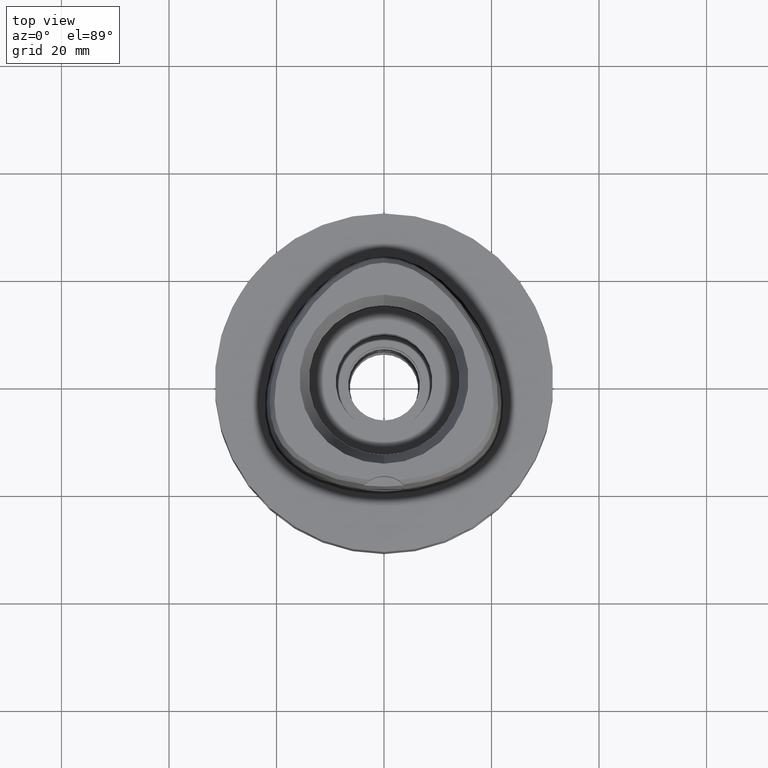
[diagram: clean part render]
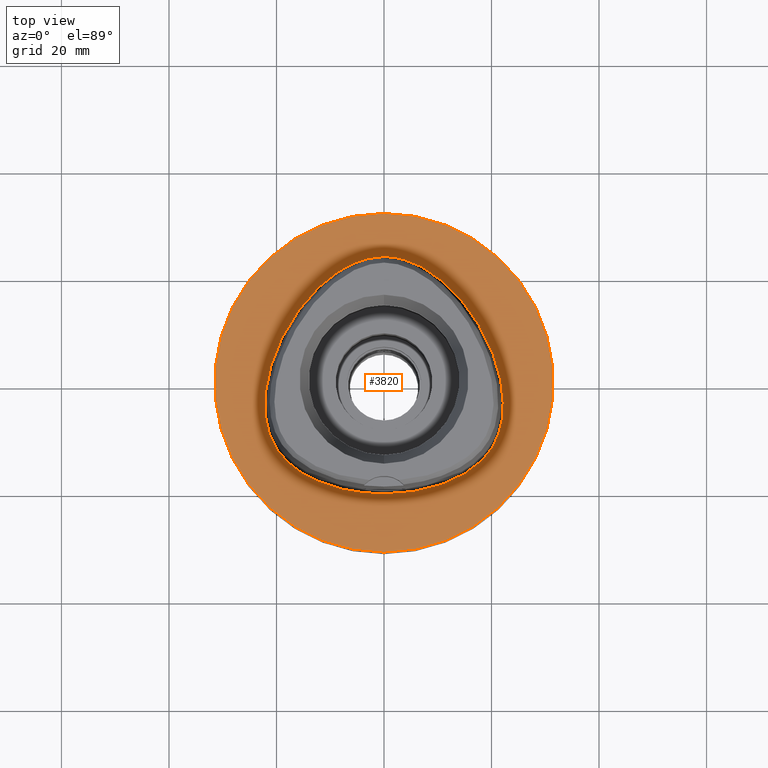
[diagram: same view with one face highlighted and labeled with its STEP entity id]
A machine part, top view. The second image highlights one B-rep face of the part: STEP entity #3820.
In plain terms, the highlighted planar face has unit normal (0, 0, -1).
Its self-contained STEP definition (entity closure, byte-faithful):
#47 = DIRECTION ( 'NONE',  ( 0.0000000000000000000, 0.0000000000000000000, -1.000000000000000000 ) ) ;
#123 = CARTESIAN_POINT ( 'NONE',  ( 18.56841065782704092, -14.16937988888225952, -3.519438220402678480E-07 ) ) ;
#136 = CARTESIAN_POINT ( 'NONE',  ( 0.0000000000000000000, 1.260345253342000041E-14, 0.0000000000000000000 ) ) ;
#161 = CARTESIAN_POINT ( 'NONE',  ( 20.93173253017243240, -10.60431640983400392, -3.519438220402678480E-07 ) ) ;
#225 = EDGE_CURVE ( 'NONE', #897, #1116, #770, .T. ) ;
#316 = CARTESIAN_POINT ( 'NONE',  ( -18.06826688405839221, 10.43171874929906373, 5.578078756817046735E-08 ) ) ;
#425 = CARTESIAN_POINT ( 'NONE',  ( 0.0000000000000000000, 1.260345253342000041E-14, 0.0000000000000000000 ) ) ;
#464 = CARTESIAN_POINT ( 'NONE',  ( 20.74942741711928562, 4.657187503000058015, -3.519438220402678480E-07 ) ) ;
#492 = CARTESIAN_POINT ( 'NONE',  ( 16.95889173139985573, -15.67838867882126408, -3.519438220402678480E-07 ) ) ;
#530 = CARTESIAN_POINT ( 'NONE',  ( 21.55524826855592124, -8.996025393140344661, -3.519438220402678480E-07 ) ) ;
#561 = EDGE_CURVE ( 'NONE', #3379, #1033, #1163, .T. ) ;
#630 = CARTESIAN_POINT ( 'NONE',  ( -14.67337964350561208, -17.21410156128839120, 5.578078756817046735E-08 ) ) ;
#656 = PLANE ( 'NONE',  #1421 ) ;
#677 = FACE_BOUND ( 'NONE', #1548, .T. ) ;
#770 = CIRCLE ( 'NONE', #1636, 31.50000000000000000 ) ;
#831 = CARTESIAN_POINT ( 'NONE',  ( 22.05732875196926202, -6.847636720006784472, -3.519438220402678480E-07 ) ) ;
#882 = CARTESIAN_POINT ( 'NONE',  ( 2.113823673588550722, -20.67500000879218547, -3.519438220402678480E-07 ) ) ;
#897 = VERTEX_POINT ( 'NONE', #2217 ) ;
#901 = DIRECTION ( 'NONE',  ( 0.0000000000000000000, 0.0000000000000000000, -1.000000000000000000 ) ) ;
#1003 = DIRECTION ( 'NONE',  ( 0.0000000000000000000, 0.0000000000000000000, -1.000000000000000000 ) ) ;
#1028 = CARTESIAN_POINT ( 'NONE',  ( -20.74942740748031866, 4.657187499524839680, 5.578078756817046735E-08 ) ) ;
#1033 = VERTEX_POINT ( 'NONE', #4502 ) ;
#1055 = CARTESIAN_POINT ( 'NONE',  ( -20.34961798436241054, -11.74885742116761378, 5.578078756817046735E-08 ) ) ;
#1098 = CARTESIAN_POINT ( 'NONE',  ( -22.05732874183049219, -6.847636718550103474, 5.578078756817046735E-08 ) ) ;
#1116 = VERTEX_POINT ( 'NONE', #3610 ) ;
#1163 = B_SPLINE_CURVE_WITH_KNOTS ( 'NONE', 3,
 ( #3090, #882, #1224, #2677, #3797, #492, #123, #2345, #1967, #161, #530, #831, #3382, #1559, #464, #3015, #4582, #3827, #2363, #4171, #1657, #1616, #4515 ),
 .UNSPECIFIED., .F., .F.,
 ( 4, 1, 1, 1, 1, 1, 1, 1, 1, 1, 1, 1, 1, 1, 1, 1, 1, 1, 1, 1, 4 ),
 ( 0.0000000000000000000, 0.08333333333348000305, 0.1666666666668000230, 0.2083333333334000115, 0.2500000000000999756, 0.2916666666666999919, 0.3125000000000000000, 0.3333333333333000081, 0.3541666666666999919, 0.3750000000000000000, 0.4166666666666999919, 0.4583333333332000326, 0.4999999999998999689, 0.5833333333332000326, 0.6666666666664999852, 0.7499999999998000488, 0.8333333333329999704, 0.8749999999997000177, 0.9166666666664000651, 0.9583333333329999704, 1.000000000000000000 ),
 .UNSPECIFIED. ) ;
#1224 = CARTESIAN_POINT ( 'NONE',  ( 6.341471020775136580, -20.29812500871732084, -3.519438220402679009E-07 ) ) ;
#1259 = ORIENTED_EDGE ( 'NONE', *, *, #4202, .F. ) ;
#1368 = CARTESIAN_POINT ( 'NONE',  ( -7.571159433644832681, 21.31457031129234991, 5.578078756817046735E-08 ) ) ;
#1411 = CARTESIAN_POINT ( 'NONE',  ( -5.098437016762670027, 22.52602538933180654, 5.578078756817046735E-08 ) ) ;
#1421 = AXIS2_PLACEMENT_3D ( 'NONE', #2914, #1003, #3676 ) ;
#1540 = DIRECTION ( 'NONE',  ( 0.0000000000000000000, -1.000000000000000000, 0.0000000000000000000 ) ) ;
#1548 = EDGE_LOOP ( 'NONE', ( #3148, #4678 ) ) ;
#1559 = CARTESIAN_POINT ( 'NONE',  ( 21.97832648657396248, -0.2810937484606424452, -3.519438220402678480E-07 ) ) ;
#1616 = CARTESIAN_POINT ( 'NONE',  ( 0.8548392429320488262, 23.47500000880000215, -3.519438220402678480E-07 ) ) ;
#1630 = DIRECTION ( 'NONE',  ( 0.0000000000000000000, 1.000000000000000000, 0.0000000000000000000 ) ) ;
#1636 = AXIS2_PLACEMENT_3D ( 'NONE', #425, #47, #1540 ) ;
#1657 = CARTESIAN_POINT ( 'NONE',  ( 2.564517728765120186, 23.29328125865878718, -3.519438220402678480E-07 ) ) ;
#1773 = CARTESIAN_POINT ( 'NONE',  ( -0.8548392421977135669, 23.47499999860813347, 5.578078756817047397E-08 ) ) ;
#1799 = CARTESIAN_POINT ( 'NONE',  ( -11.23259756679494892, -18.89324218618955697, 5.578078756817046735E-08 ) ) ;
#1844 = CARTESIAN_POINT ( 'NONE',  ( -16.95889172506567988, -15.67838867077062481, 5.578078756817046735E-08 ) ) ;
#1967 = CARTESIAN_POINT ( 'NONE',  ( 20.34961799320004516, -11.74885742627617091, -3.519438220402678480E-07 ) ) ;
#2149 = CARTESIAN_POINT ( 'NONE',  ( -22.24453907715009393, -4.100468750008132268, 5.578078756817046735E-08 ) ) ;
#2217 = CARTESIAN_POINT ( 'NONE',  ( 0.0000000000000000000, -31.50000000000000000, 0.0000000000000000000 ) ) ;
#2259 = AXIS2_PLACEMENT_3D ( 'NONE', #136, #901, #1630 ) ;
#2345 = CARTESIAN_POINT ( 'NONE',  ( 19.64947366576182830, -12.82525391143864013, -3.519438220402678480E-07 ) ) ;
#2363 = CARTESIAN_POINT ( 'NONE',  ( 7.571159438808491515, 21.31457032011850572, -3.519438220402678480E-07 ) ) ;
#2458 = FACE_OUTER_BOUND ( 'NONE', #3093, .T. ) ;
#2485 = CARTESIAN_POINT ( 'NONE',  ( -21.55524825875600570, -8.996025390226925822, 5.578078756817046735E-08 ) ) ;
#2553 = CARTESIAN_POINT ( 'NONE',  ( -19.64947365751178054, -12.82525390542999055, 5.578078756817046735E-08 ) ) ;
#2677 = CARTESIAN_POINT ( 'NONE',  ( 11.23259757029823014, -18.89324219580533537, -3.519438220402678480E-07 ) ) ;
#2819 = CARTESIAN_POINT ( 'NONE',  ( -21.97832647648946391, -0.2810937502439825320, 5.578078756817046735E-08 ) ) ;
#2839 = CARTESIAN_POINT ( 'NONE',  ( 6.719624567630999851E-11, 23.47499999998000320, 1.604642344924999868E-13 ) ) ;
#2892 = CARTESIAN_POINT ( 'NONE',  ( -20.93173252083945357, -10.60431640568915057, 5.578078756817046735E-08 ) ) ;
#2914 = CARTESIAN_POINT ( 'NONE',  ( 0.0000000000000000000, 1.224646799146999965E-14, 0.0000000000000000000 ) ) ;
#3015 = CARTESIAN_POINT ( 'NONE',  ( 18.06826689292752164, 10.43171875442610030, -3.519438220402678480E-07 ) ) ;
#3059 = ORIENTED_EDGE ( 'NONE', *, *, #225, .F. ) ;
#3090 = CARTESIAN_POINT ( 'NONE',  ( -1.465435788041999934E-11, -20.67499999999999716, 1.633878217906999793E-13 ) ) ;
#3093 = EDGE_LOOP ( 'NONE', ( #1259, #3059 ) ) ;
#3148 = ORIENTED_EDGE ( 'NONE', *, *, #3840, .F. ) ;
#3234 = CARTESIAN_POINT ( 'NONE',  ( -14.40795638851530214, 15.64093749909538289, 5.578078756817046735E-08 ) ) ;
#3265 = CARTESIAN_POINT ( 'NONE',  ( -1.465435788041999934E-11, -20.67499999999999716, 1.633878217906999793E-13 ) ) ;
#3379 = VERTEX_POINT ( 'NONE', #3933 ) ;
#3382 = CARTESIAN_POINT ( 'NONE',  ( 22.24453908737247332, -4.100468749947764557, -3.519438220402678480E-07 ) ) ;
#3610 = CARTESIAN_POINT ( 'NONE',  ( 0.0000000000000000000, 31.50000000000000000, 0.0000000000000000000 ) ) ;
#3623 = CARTESIAN_POINT ( 'NONE',  ( -2.564517726670016540, 23.29328124862723826, 5.578078756817046735E-08 ) ) ;
#3676 = DIRECTION ( 'NONE',  ( 0.0000000000000000000, -1.000000000000000000, 0.0000000000000000000 ) ) ;
#3758 = B_SPLINE_CURVE_WITH_KNOTS ( 'NONE', 3,
 ( #2839, #1773, #3623, #1411, #1368, #3981, #3234, #316, #1028, #2819, #2149, #1098, #2485, #2892, #1055, #2553, #3952, #1844, #630, #1799, #4055, #4729, #3265 ),
 .UNSPECIFIED., .F., .F.,
 ( 4, 1, 1, 1, 1, 1, 1, 1, 1, 1, 1, 1, 1, 1, 1, 1, 1, 1, 1, 1, 4 ),
 ( 0.0000000000000000000, 0.04166666666769999749, 0.08333333333431000578, 0.1250000000009000023, 0.1666666666676000219, 0.2500000000008000267, 0.3333333333339000282, 0.4166666666672000363, 0.5000000000004000134, 0.5416666666671000607, 0.5833333333336000459, 0.6250000000002999823, 0.6458333333335000148, 0.6666666666668999985, 0.6875000000001999512, 0.7083333333335000148, 0.7500000000001000311, 0.7916666666667000474, 0.8333333333333000637, 0.9166666666666000163, 1.000000000000000000 ),
 .UNSPECIFIED. ) ;
#3797 = CARTESIAN_POINT ( 'NONE',  ( 14.67337964856386812, -17.21410157016247666, -3.519438220402678480E-07 ) ) ;
#3820 = ADVANCED_FACE ( 'NONE', ( #2458, #677 ), #656, .F. ) ;
#3827 = CARTESIAN_POINT ( 'NONE',  ( 10.74572891627478732, 19.17433594426985977, -3.519438220402678480E-07 ) ) ;
#3840 = EDGE_CURVE ( 'NONE', #1033, #3379, #3758, .T. ) ;
#3933 = CARTESIAN_POINT ( 'NONE',  ( -1.465435788041999934E-11, -20.67499999999999716, 1.633878217906999793E-13 ) ) ;
#3952 = CARTESIAN_POINT ( 'NONE',  ( -18.56841065040598693, -14.16937988185256181, 5.578078756817046735E-08 ) ) ;
#3974 = CIRCLE ( 'NONE', #2259, 31.50000000000000000 ) ;
#3981 = CARTESIAN_POINT ( 'NONE',  ( -10.74572890969355221, 19.17433593642237710, 5.578078756817046735E-08 ) ) ;
#4055 = CARTESIAN_POINT ( 'NONE',  ( -6.341471018963880546, -20.29812499862724096, 5.578078756817046735E-08 ) ) ;
#4171 = CARTESIAN_POINT ( 'NONE',  ( 5.098437020567613054, 22.52602539883262622, -3.519438220402678480E-07 ) ) ;
#4202 = EDGE_CURVE ( 'NONE', #1116, #897, #3974, .T. ) ;
#4502 = CARTESIAN_POINT ( 'NONE',  ( 6.719624567630999851E-11, 23.47499999998000320, 1.604642344924999868E-13 ) ) ;
#4515 = CARTESIAN_POINT ( 'NONE',  ( 6.719624567630999851E-11, 23.47499999998000320, 1.604642344924999868E-13 ) ) ;
#4582 = CARTESIAN_POINT ( 'NONE',  ( 14.40795639634335856, 15.64093750571275976, -3.519438220402678480E-07 ) ) ;
#4678 = ORIENTED_EDGE ( 'NONE', *, *, #561, .F. ) ;
#4729 = CARTESIAN_POINT ( 'NONE',  ( -2.113823672981669954, -20.67499999860270776, 5.578078756817046735E-08 ) ) ;